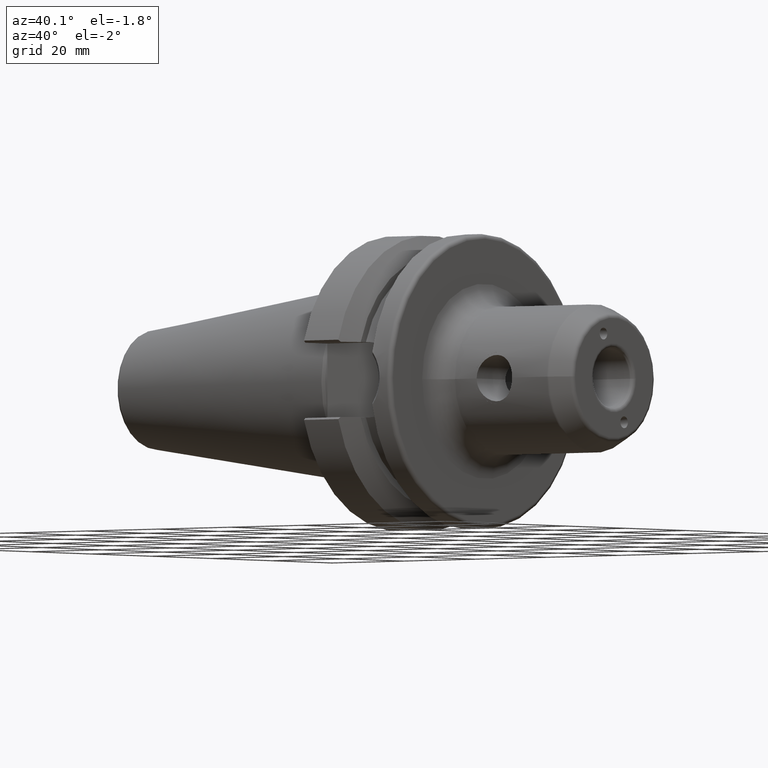
[diagram: clean part render]
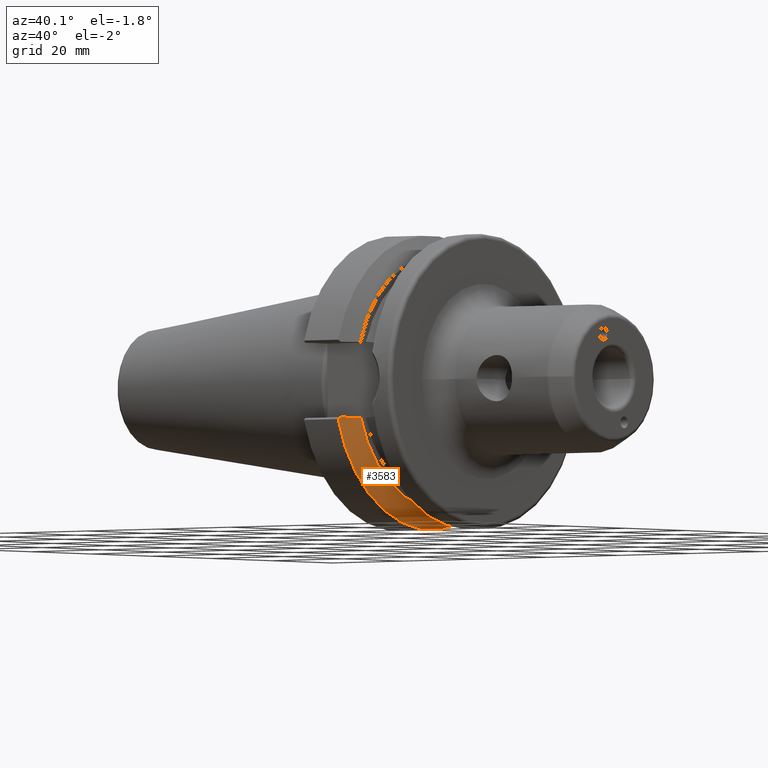
[diagram: same view with one face highlighted and labeled with its STEP entity id]
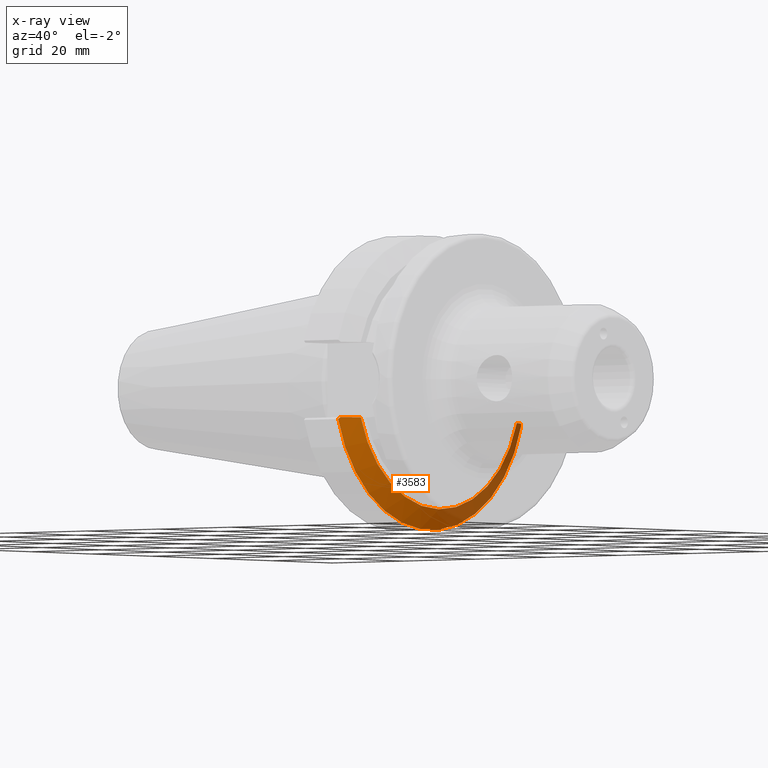
[diagram: x-ray of the same camera — body ghosted, the highlighted face saturated]
A machine part, auxiliary view. The second image highlights one B-rep face of the part: STEP entity #3583.
The next image is the same camera in x-ray: the body ghosted, the highlighted face saturated — about 28% of this face is hidden behind the body in this view.
In plain terms, the highlighted conical surface has half-angle 60 deg.
Its self-contained STEP definition (entity closure, byte-faithful):
#1409=CARTESIAN_POINT('',(1.41E1,-2.589378524176E1,-8.05E0));
#1410=CARTESIAN_POINT('',(1.386450341249E1,-2.632093406585E1,-8.05E0));
#1411=CARTESIAN_POINT('',(1.338588596161E1,-2.718719807101E1,-8.05E0));
#1412=CARTESIAN_POINT('',(1.264535505638E1,-2.852228716965E1,-8.05E0));
#1413=CARTESIAN_POINT('',(1.213636940407E1,-2.943672353446E1,-8.05E0));
#1414=CARTESIAN_POINT('',(1.187809346105E1,-2.99E1,-8.05E0));
#1416=CARTESIAN_POINT('',(1.41E1,0.E0,0.E0));
#1417=DIRECTION('',(1.E0,0.E0,0.E0));
#1418=DIRECTION('',(0.E0,-9.549178917964E-1,-2.968700387830E-1));
#1419=AXIS2_PLACEMENT_3D('',#1416,#1417,#1418);
#1421=CARTESIAN_POINT('',(1.187809346105E1,2.99E1,-8.05E0));
#1422=CARTESIAN_POINT('',(1.213608053432E1,2.943724168785E1,-8.05E0));
#1423=CARTESIAN_POINT('',(1.264468269184E1,2.852349654788E1,-8.05E0));
#1424=CARTESIAN_POINT('',(1.338523678300E1,2.718837129527E1,-8.05E0));
#1425=CARTESIAN_POINT('',(1.386422607045E1,2.632143711487E1,-8.05E0));
#1426=CARTESIAN_POINT('',(1.41E1,2.589378524176E1,-8.05E0));
#1428=CARTESIAN_POINT('',(1.187809346105E1,2.99E1,-8.05E0));
#1429=CARTESIAN_POINT('',(1.184412243022E1,2.994800919416E1,-8.098009194156E0));
#1430=CARTESIAN_POINT('',(1.177593456126E1,3.004428424075E1,-8.194284240747E0));
#1431=CARTESIAN_POINT('',(1.167291601044E1,3.018946614020E1,-8.339466140200E0));
#1432=CARTESIAN_POINT('',(1.160374493301E1,3.028676841650E1,-8.436768416504E0));
#1433=CARTESIAN_POINT('',(1.15690365E1,3.033554803451E1,-8.485548034509E0));
#1435=CARTESIAN_POINT('',(1.15690365E1,0.E0,0.E0));
#1436=DIRECTION('',(-1.E0,0.E0,0.E0));
#1437=DIRECTION('',(0.E0,9.630332709368E-1,-2.693824772860E-1));
#1438=AXIS2_PLACEMENT_3D('',#1435,#1436,#1437);
#1440=CARTESIAN_POINT('',(1.15690365E1,-3.033554803451E1,-8.485548034509E0));
#1441=CARTESIAN_POINT('',(1.162109299730E1,-3.026238725388E1,
-8.412387253883E0));
#1442=CARTESIAN_POINT('',(1.172465915984E1,-3.011663519535E1,
-8.266635195345E0));
#1443=CARTESIAN_POINT('',(1.182713113718E1,-2.997202195639E1,
-8.122021956386E0));
#1444=CARTESIAN_POINT('',(1.187809346105E1,-2.99E1,-8.05E0));
#1954=CARTESIAN_POINT('',(1.41E1,2.589378524176E1,-8.05E0));
#1956=VERTEX_POINT('',#1954);
#2054=VERTEX_POINT('',#1428);
#2055=VERTEX_POINT('',#1433);
#2078=CARTESIAN_POINT('',(1.15690365E1,-3.033554803451E1,-8.485548034509E0));
#2080=VERTEX_POINT('',#2078);
#2092=VERTEX_POINT('',#1409);
#2093=VERTEX_POINT('',#1414);
#3567=CARTESIAN_POINT('',(1.283451825E1,0.E0,0.E0));
#3568=DIRECTION('',(-1.E0,0.E0,0.E0));
#3569=DIRECTION('',(0.E0,0.E0,-1.E0));
#3570=AXIS2_PLACEMENT_3D('',#3567,#3568,#3569);
#3571=CONICAL_SURFACE('',#3570,2.930812131295E1,6.E1);
#3572=ORIENTED_EDGE('',*,*,#3333,.F.);
#3574=ORIENTED_EDGE('',*,*,#3573,.T.);
#3576=ORIENTED_EDGE('',*,*,#3575,.F.);
#3578=ORIENTED_EDGE('',*,*,#3577,.T.);
#3579=ORIENTED_EDGE('',*,*,#3496,.T.);
#3580=ORIENTED_EDGE('',*,*,#3541,.T.);
#3581=EDGE_LOOP('',(#3572,#3574,#3576,#3578,#3579,#3580));
#3582=FACE_OUTER_BOUND('',#3581,.F.);
#3583=ADVANCED_FACE('',(#3582),#3571,.T.);
#1415=B_SPLINE_CURVE_WITH_KNOTS('',3,(#1409,#1410,#1411,#1412,#1413,#1414),
.UNSPECIFIED.,.F.,.F.,(4,1,1,4),(0.E0,3.333333333333E-1,6.666666666667E-1,1.E0),
.UNSPECIFIED.);
#1420=CIRCLE('',#1419,2.711624262590E1);
#1427=B_SPLINE_CURVE_WITH_KNOTS('',3,(#1421,#1422,#1423,#1424,#1425,#1426),
.UNSPECIFIED.,.F.,.F.,(4,1,1,4),(0.E0,3.333333333333E-1,6.666666666667E-1,1.E0),
.UNSPECIFIED.);
#1434=B_SPLINE_CURVE_WITH_KNOTS('',3,(#1428,#1429,#1430,#1431,#1432,#1433),
.UNSPECIFIED.,.F.,.F.,(4,1,1,4),(0.E0,3.333333333333E-1,6.666666666667E-1,1.E0),
.UNSPECIFIED.);
#1439=CIRCLE('',#1438,3.15E1);
#1445=B_SPLINE_CURVE_WITH_KNOTS('',3,(#1440,#1441,#1442,#1443,#1444),
.UNSPECIFIED.,.F.,.F.,(4,1,4),(0.E0,5.E-1,1.E0),.UNSPECIFIED.);
#3333=EDGE_CURVE('',#2092,#2093,#1415,.T.);
#3496=EDGE_CURVE('',#2055,#2080,#1439,.T.);
#3541=EDGE_CURVE('',#2080,#2093,#1445,.T.);
#3573=EDGE_CURVE('',#2092,#1956,#1420,.T.);
#3575=EDGE_CURVE('',#2054,#1956,#1427,.T.);
#3577=EDGE_CURVE('',#2054,#2055,#1434,.T.);